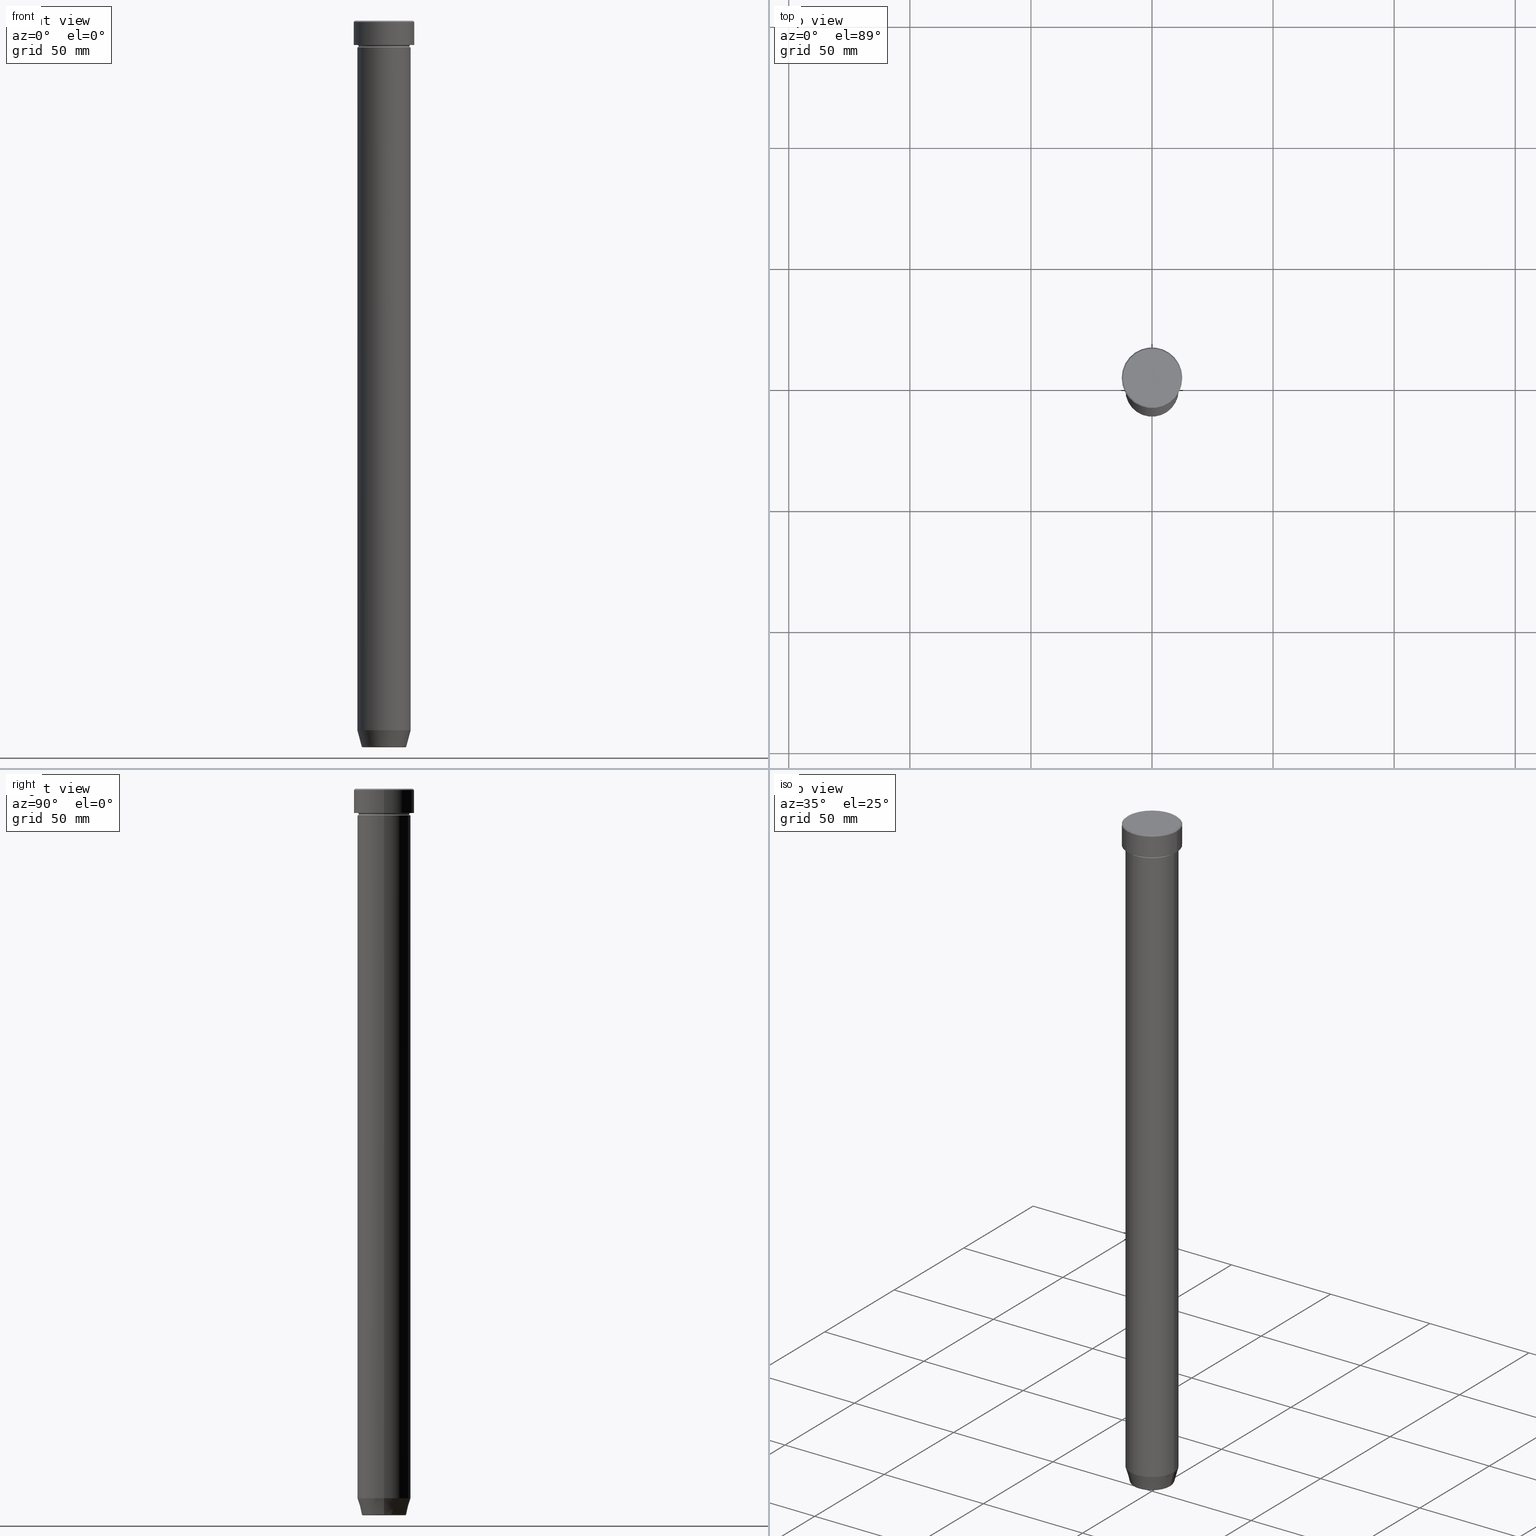
[diagram: canonical four-view strip — front | top / right | iso, engineering-drawing reading convention]
A machine part, canonical four-view strip (front | top / right | iso — engineering-drawing reading convention). The complete STEP part file that produces these views, byte-faithful:
ISO-10303-21;
HEADER;
FILE_DESCRIPTION (( 'STEP AP203' ),
    '1' );
FILE_NAME ('4455.STEP',
    '2024-01-02T19:21:21',
    ( '' ),
    ( '' ),
    'SwSTEP 2.0',
    'SolidWorks 2019',
    '' );
FILE_SCHEMA (( 'CONFIG_CONTROL_DESIGN' ));
ENDSEC;

DATA;
#1 = DIRECTION ( 'NONE',  ( 1.000000000000000000, 0.000000000000000000, 0.000000000000000000 ) ) ;
#2 = MECHANICAL_CONTEXT ( 'NONE', #99, 'mechanical' ) ;
#3 = DIRECTION ( 'NONE',  ( 1.000000000000000000, 0.000000000000000000, 0.000000000000000000 ) ) ;
#4 = ORIENTED_EDGE ( 'NONE', *, *, #366, .F. ) ;
#5 = DIRECTION ( 'NONE',  ( 1.000000000000000000, 0.000000000000000000, 0.000000000000000000 ) ) ;
#6 = FACE_OUTER_BOUND ( 'NONE', #389, .T. ) ;
#7 = AXIS2_PLACEMENT_3D ( 'NONE', #462, #44, #103 ) ;
#8 = AXIS2_PLACEMENT_3D ( 'NONE', #593, #599, #39 ) ;
#9 = PERSON_AND_ORGANIZATION_ROLE ( 'creator' ) ;
#10 = ORIENTED_EDGE ( 'NONE', *, *, #246, .F. ) ;
#11 = FACE_OUTER_BOUND ( 'NONE', #453, .T. ) ;
#12 = CARTESIAN_POINT ( 'NONE',  ( 8.740692158992649397, 0.000000000000000000, -300.0000000000000568 ) ) ;
#13 = ORIENTED_EDGE ( 'NONE', *, *, #347, .F. ) ;
#14 = CARTESIAN_POINT ( 'NONE',  ( -11.00000000000000000, 1.347111479062088405E-15, -11.00000000000000000 ) ) ;
#15 = EDGE_CURVE ( 'NONE', #28, #100, #488, .T. ) ;
#16 = DIRECTION ( 'NONE',  ( 1.000000000000000000, 0.000000000000000000, 0.000000000000000000 ) ) ;
#17 = EDGE_CURVE ( 'NONE', #273, #529, #159, .T. ) ;
#18 = DATE_AND_TIME ( #107, #428 ) ;
#19 = AXIS2_PLACEMENT_3D ( 'NONE', #68, #158, #329 ) ;
#20 = VECTOR ( 'NONE', #300, 1000.000000000000000 ) ;
#21 = DIRECTION ( 'NONE',  ( -0.000000000000000000, -0.000000000000000000, 1.000000000000000000 ) ) ;
#22 = PRODUCT_DEFINITION ( 'NEZN�M�', '', #288, #29 ) ;
#23 = APPROVAL_DATE_TIME ( #272, #583 ) ;
#24 = CIRCLE ( 'NONE', #84, 11.00000000000000000 ) ;
#25 = VECTOR ( 'NONE', #169, 999.9999999999998863 ) ;
#26 = DIRECTION ( 'NONE',  ( -0.000000000000000000, -0.000000000000000000, 1.000000000000000000 ) ) ;
#27 = ORIENTED_EDGE ( 'NONE', *, *, #319, .F. ) ;
#28 = VERTEX_POINT ( 'NONE', #586 ) ;
#29 = DESIGN_CONTEXT ( 'detailed design', #480, 'design' ) ;
#30 = ORIENTED_EDGE ( 'NONE', *, *, #54, .T. ) ;
#31 = LOCAL_TIME ( 20, 21, 21.00000000000000000, #360 ) ;
#32 = CYLINDRICAL_SURFACE ( 'NONE', #597, 12.50000000000000000 ) ;
#33 = EDGE_LOOP ( 'NONE', ( #403, #124 ) ) ;
#34 = CARTESIAN_POINT ( 'NONE',  ( 0.000000000000000000, 0.000000000000000000, 0.000000000000000000 ) ) ;
#35 = FACE_OUTER_BOUND ( 'NONE', #111, .T. ) ;
#36 = AXIS2_PLACEMENT_3D ( 'NONE', #463, #413, #452 ) ;
#37 = ADVANCED_FACE ( 'NONE', ( #35 ), #399, .T. ) ;
#38 = ORIENTED_EDGE ( 'NONE', *, *, #98, .F. ) ;
#39 = DIRECTION ( 'NONE',  ( 1.000000000000000000, 0.000000000000000000, 0.000000000000000000 ) ) ;
#40 = DIRECTION ( 'NONE',  ( -0.000000000000000000, -1.000000000000000000, -0.000000000000000000 ) ) ;
#41 = ORIENTED_EDGE ( 'NONE', *, *, #286, .T. ) ;
#42 = DIRECTION ( 'NONE',  ( 1.000000000000000000, 0.000000000000000000, 0.000000000000000000 ) ) ;
#43 = DIRECTION ( 'NONE',  ( 0.000000000000000000, -1.000000000000000000, 0.000000000000000000 ) ) ;
#44 = DIRECTION ( 'NONE',  ( -0.000000000000000000, -0.000000000000000000, 1.000000000000000000 ) ) ;
#45 = CARTESIAN_POINT ( 'NONE',  ( 0.000000000000000000, 0.000000000000000000, -27.00000000000000000 ) ) ;
#46 = DIRECTION ( 'NONE',  ( 1.000000000000000000, 0.000000000000000000, 0.000000000000000000 ) ) ;
#47 = AXIS2_PLACEMENT_3D ( 'NONE', #350, #134, #213 ) ;
#48 = PERSON_AND_ORGANIZATION ( #513, #315 ) ;
#49 = TOROIDAL_SURFACE ( 'NONE', #140, 11.00000000000000000, 0.5000000000000000000 ) ;
#50 = DIRECTION ( 'NONE',  ( 0.000000000000000000, 0.000000000000000000, -1.000000000000000000 ) ) ;
#51 = DIRECTION ( 'NONE',  ( 1.000000000000000000, 0.000000000000000000, 0.000000000000000000 ) ) ;
#52 = CYLINDRICAL_SURFACE ( 'NONE', #491, 11.00000000000000000 ) ;
#53 = DIRECTION ( 'NONE',  ( 1.000000000000000000, 0.000000000000000000, 0.000000000000000000 ) ) ;
#54 = EDGE_CURVE ( 'NONE', #208, #489, #365, .T. ) ;
#55 = ORIENTED_EDGE ( 'NONE', *, *, #155, .T. ) ;
#56 = DIRECTION ( 'NONE',  ( 1.000000000000000000, 0.000000000000000000, 0.000000000000000000 ) ) ;
#57 = ORIENTED_EDGE ( 'NONE', *, *, #390, .T. ) ;
#58 = CIRCLE ( 'NONE', #19, 12.50000000000000000 ) ;
#59 = CYLINDRICAL_SURFACE ( 'NONE', #7, 11.00000000000000000 ) ;
#60 = ORIENTED_EDGE ( 'NONE', *, *, #495, .T. ) ;
#61 = CARTESIAN_POINT ( 'NONE',  ( -10.49999999999999822, 1.316495309083404420E-15, -10.49999999999999822 ) ) ;
#62 = CARTESIAN_POINT ( 'NONE',  ( 0.000000000000000000, 0.000000000000000000, 0.000000000000000000 ) ) ;
#63 = FACE_OUTER_BOUND ( 'NONE', #211, .T. ) ;
#64 = DIRECTION ( 'NONE',  ( -0.000000000000000000, -0.000000000000000000, 1.000000000000000000 ) ) ;
#65 = APPROVAL_STATUS ( 'not_yet_approved' ) ;
#66 = ORIENTED_EDGE ( 'NONE', *, *, #585, .F. ) ;
#67 = FACE_OUTER_BOUND ( 'NONE', #199, .T. ) ;
#68 = CARTESIAN_POINT ( 'NONE',  ( 0.000000000000000000, 0.000000000000000000, -10.00000000000000000 ) ) ;
#69 = AXIS2_PLACEMENT_3D ( 'NONE', #45, #264, #410 ) ;
#70 = PRODUCT_RELATED_PRODUCT_CATEGORY ( 'detail', '', ( #445 ) ) ;
#71 =( NAMED_UNIT ( * ) PLANE_ANGLE_UNIT ( ) SI_UNIT ( $, .RADIAN. ) );
#72 = AXIS2_PLACEMENT_3D ( 'NONE', #552, #132, #308 ) ;
#73 = ORIENTED_EDGE ( 'NONE', *, *, #449, .T. ) ;
#74 = ADVANCED_FACE ( 'NONE', ( #278 ), #579, .T. ) ;
#75 = ADVANCED_FACE ( 'NONE', ( #423 ), #195, .T. ) ;
#76 = CARTESIAN_POINT ( 'NONE',  ( 0.000000000000000000, 0.000000000000000000, -10.00000000000000000 ) ) ;
#77 = PERSON_AND_ORGANIZATION ( #513, #315 ) ;
#78 = EDGE_LOOP ( 'NONE', ( #497, #189, #490, #224 ) ) ;
#79 = FACE_OUTER_BOUND ( 'NONE', #353, .T. ) ;
#80 = ORIENTED_EDGE ( 'NONE', *, *, #241, .T. ) ;
#81 = EDGE_CURVE ( 'NONE', #177, #375, #596, .T. ) ;
#82 = CARTESIAN_POINT ( 'NONE',  ( 11.00000000000000000, 1.347111479062088405E-15, -10.00000000000000000 ) ) ;
#83 = VERTEX_POINT ( 'NONE', #527 ) ;
#84 = AXIS2_PLACEMENT_3D ( 'NONE', #94, #136, #261 ) ;
#85 = AXIS2_PLACEMENT_3D ( 'NONE', #102, #371, #424 ) ;
#86 = ADVANCED_FACE ( 'NONE', ( #108 ), #450, .F. ) ;
#87 = CARTESIAN_POINT ( 'NONE',  ( 0.000000000000000000, 0.000000000000000000, -300.0000000000000568 ) ) ;
#88 = ORIENTED_EDGE ( 'NONE', *, *, #566, .F. ) ;
#89 = CARTESIAN_POINT ( 'NONE',  ( 0.000000000000000000, 12.50000000000000000, -10.00000000000000000 ) ) ;
#90 = CARTESIAN_POINT ( 'NONE',  ( 9.124355652982126585, 0.000000000000000000, -300.0000000000000568 ) ) ;
#91 = EDGE_CURVE ( 'NONE', #123, #345, #512, .T. ) ;
#92 = EDGE_CURVE ( 'NONE', #273, #240, #466, .T. ) ;
#93 = ORIENTED_EDGE ( 'NONE', *, *, #495, .F. ) ;
#94 = CARTESIAN_POINT ( 'NONE',  ( 0.000000000000000000, 0.000000000000000000, -293.0000000000000568 ) ) ;
#95 = CONICAL_SURFACE ( 'NONE', #248, 9.124355652982126585, 0.2617993877991509621 ) ;
#96 = DATE_AND_TIME ( #560, #138 ) ;
#97 = AXIS2_PLACEMENT_3D ( 'NONE', #470, #433, #205 ) ;
#98 = EDGE_CURVE ( 'NONE', #123, #171, #139, .T. ) ;
#99 = APPLICATION_CONTEXT ( 'configuration controlled 3d designs of mechanical parts and assemblies' ) ;
#100 = VERTEX_POINT ( 'NONE', #592 ) ;
#101 = APPROVAL_ROLE ( '' ) ;
#102 = CARTESIAN_POINT ( 'NONE',  ( 0.000000000000000000, 0.000000000000000000, -27.00000000000000000 ) ) ;
#103 = DIRECTION ( 'NONE',  ( 1.000000000000000000, 0.000000000000000000, 0.000000000000000000 ) ) ;
#104 = SHAPE_DEFINITION_REPRESENTATION ( #377, #149 ) ;
#105 = CC_DESIGN_SECURITY_CLASSIFICATION ( #234, ( #288 ) ) ;
#106 = DATE_AND_TIME ( #477, #563 ) ;
#107 = CALENDAR_DATE ( 2024, 2, 1 ) ;
#108 = FACE_OUTER_BOUND ( 'NONE', #478, .T. ) ;
#109 = AXIS2_PLACEMENT_3D ( 'NONE', #441, #398, #222 ) ;
#110 = MANIFOLD_SOLID_BREP ( 'Zkosen�1', #257 ) ;
#111 = EDGE_LOOP ( 'NONE', ( #570, #57, #55, #130 ) ) ;
#112 = MANIFOLD_SOLID_BREP ( 'Zaoblit4', #380 ) ;
#113 = DIRECTION ( 'NONE',  ( 1.000000000000000000, 0.000000000000000000, 0.000000000000000000 ) ) ;
#114 = DIRECTION ( 'NONE',  ( 0.000000000000000000, 0.000000000000000000, -1.000000000000000000 ) ) ;
#115 = APPROVAL_PERSON_ORGANIZATION ( #425, #583, #183 ) ;
#116 = DIRECTION ( 'NONE',  ( 1.000000000000000000, 0.000000000000000000, 0.000000000000000000 ) ) ;
#117 = AXIS2_PLACEMENT_3D ( 'NONE', #76, #164, #342 ) ;
#118 = CIRCLE ( 'NONE', #530, 8.740692158992649397 ) ;
#119 = EDGE_CURVE ( 'NONE', #405, #171, #587, .T. ) ;
#120 = VERTEX_POINT ( 'NONE', #311 ) ;
#121 = ADVANCED_FACE ( 'NONE', ( #588 ), #207, .T. ) ;
#122 = AXIS2_PLACEMENT_3D ( 'NONE', #287, #384, #374 ) ;
#123 = VERTEX_POINT ( 'NONE', #247 ) ;
#124 = ORIENTED_EDGE ( 'NONE', *, *, #482, .F. ) ;
#125 = EDGE_LOOP ( 'NONE', ( #232, #249, #448, #468 ) ) ;
#126 = CARTESIAN_POINT ( 'NONE',  ( -12.50000000000000000, 1.530808498934191521E-15, -0.4999999999999988343 ) ) ;
#127 = EDGE_CURVE ( 'NONE', #100, #28, #381, .T. ) ;
#128 = VERTEX_POINT ( 'NONE', #359 ) ;
#129 = CARTESIAN_POINT ( 'NONE',  ( 0.000000000000000000, 0.000000000000000000, -0.4999999999999988343 ) ) ;
#130 = ORIENTED_EDGE ( 'NONE', *, *, #337, .F. ) ;
#131 = AXIS2_PLACEMENT_3D ( 'NONE', #219, #437, #541 ) ;
#132 = DIRECTION ( 'NONE',  ( 0.000000000000000000, 0.000000000000000000, -1.000000000000000000 ) ) ;
#133 = VERTEX_POINT ( 'NONE', #173 ) ;
#134 = DIRECTION ( 'NONE',  ( 1.224646799147353207E-16, 1.000000000000000000, 0.000000000000000000 ) ) ;
#135 = COORDINATED_UNIVERSAL_TIME_OFFSET ( 1, 0, .AHEAD. ) ;
#136 = DIRECTION ( 'NONE',  ( -0.000000000000000000, -0.000000000000000000, 1.000000000000000000 ) ) ;
#137 = EDGE_CURVE ( 'NONE', #345, #120, #192, .T. ) ;
#138 = LOCAL_TIME ( 20, 21, 21.00000000000000000, #135 ) ;
#139 = CIRCLE ( 'NONE', #131, 9.223655072137175281 ) ;
#140 = AXIS2_PLACEMENT_3D ( 'NONE', #306, #508, #53 ) ;
#141 = CARTESIAN_POINT ( 'NONE',  ( 0.000000000000000000, 0.000000000000000000, -10.49999999999999822 ) ) ;
#142 = CARTESIAN_POINT ( 'NONE',  ( 11.00000000000000000, 0.000000000000000000, -293.0000000000000568 ) ) ;
#143 = VERTEX_POINT ( 'NONE', #126 ) ;
#144 = EDGE_CURVE ( 'NONE', #83, #421, #485, .T. ) ;
#145 = DIRECTION ( 'NONE',  ( -0.000000000000000000, -0.000000000000000000, 1.000000000000000000 ) ) ;
#146 = CARTESIAN_POINT ( 'NONE',  ( 0.000000000000000000, 0.000000000000000000, -300.0000000000000568 ) ) ;
#147 = VERTEX_POINT ( 'NONE', #584 ) ;
#148 = AXIS2_PLACEMENT_3D ( 'NONE', #141, #321, #516 ) ;
#149 = ADVANCED_BREP_SHAPE_REPRESENTATION ( '4455', ( #110, #112, #243 ), #435 ) ;
#150 = CONICAL_SURFACE ( 'NONE', #573, 12.00000000000000355, 0.7853981633974465026 ) ;
#151 = AXIS2_PLACEMENT_3D ( 'NONE', #461, #43, #408 ) ;
#152 = DIRECTION ( 'NONE',  ( 0.000000000000000000, 0.000000000000000000, -1.000000000000000000 ) ) ;
#153 = DIRECTION ( 'NONE',  ( -1.000000000000000000, 0.000000000000000000, -0.000000000000000000 ) ) ;
#154 = UNCERTAINTY_MEASURE_WITH_UNIT (LENGTH_MEASURE( 1.000000000000000082E-05 ), #312, 'distance_accuracy_value', 'NONE');
#155 = EDGE_CURVE ( 'NONE', #143, #147, #564, .T. ) ;
#156 = DIRECTION ( 'NONE',  ( -0.000000000000000000, -0.000000000000000000, 1.000000000000000000 ) ) ;
#157 = ADVANCED_FACE ( 'NONE', ( #176 ), #290, .F. ) ;
#158 = DIRECTION ( 'NONE',  ( -0.000000000000000000, -0.000000000000000000, 1.000000000000000000 ) ) ;
#159 = CIRCLE ( 'NONE', #339, 10.49999999999999822 ) ;
#160 = AXIS2_PLACEMENT_3D ( 'NONE', #89, #361, #295 ) ;
#161 = ORIENTED_EDGE ( 'NONE', *, *, #168, .T. ) ;
#162 = DIRECTION ( 'NONE',  ( 1.000000000000000000, 0.000000000000000000, 0.000000000000000000 ) ) ;
#163 = AXIS2_PLACEMENT_3D ( 'NONE', #416, #228, #5 ) ;
#164 = DIRECTION ( 'NONE',  ( -0.000000000000000000, -0.000000000000000000, 1.000000000000000000 ) ) ;
#165 = CIRCLE ( 'NONE', #301, 11.00000000000000000 ) ;
#166 = TOROIDAL_SURFACE ( 'NONE', #474, 8.740692158992649397, 0.5000000000000000000 ) ;
#167 = DIRECTION ( 'NONE',  ( 1.000000000000000000, 0.000000000000000000, 0.000000000000000000 ) ) ;
#168 = EDGE_CURVE ( 'NONE', #133, #240, #368, .T. ) ;
#169 = DIRECTION ( 'NONE',  ( -0.7071067811865462405, 0.000000000000000000, -0.7071067811865489050 ) ) ;
#170 = DIRECTION ( 'NONE',  ( 1.000000000000000000, 0.000000000000000000, 0.000000000000000000 ) ) ;
#171 = VERTEX_POINT ( 'NONE', #496 ) ;
#172 = ORIENTED_EDGE ( 'NONE', *, *, #394, .F. ) ;
#173 = CARTESIAN_POINT ( 'NONE',  ( -11.00000000000000000, 0.000000000000000000, -10.00000000000000000 ) ) ;
#174 = ORIENTED_EDGE ( 'NONE', *, *, #119, .T. ) ;
#175 = ORIENTED_EDGE ( 'NONE', *, *, #347, .T. ) ;
#176 = FACE_OUTER_BOUND ( 'NONE', #260, .T. ) ;
#177 = VERTEX_POINT ( 'NONE', #210 ) ;
#178 = ADVANCED_FACE ( 'NONE', ( #79 ), #32, .T. ) ;
#179 = VECTOR ( 'NONE', #267, 1000.000000000000000 ) ;
#180 = TOROIDAL_SURFACE ( 'NONE', #148, 11.00000000000000000, 0.5000000000000000000 ) ;
#181 = PERSON_AND_ORGANIZATION ( #513, #315 ) ;
#182 = DIRECTION ( 'NONE',  ( 0.000000000000000000, -1.000000000000000000, 0.000000000000000000 ) ) ;
#183 = APPROVAL_ROLE ( '' ) ;
#184 = EDGE_CURVE ( 'NONE', #421, #83, #551, .T. ) ;
#185 = FACE_OUTER_BOUND ( 'NONE', #78, .T. ) ;
#186 = EDGE_CURVE ( 'NONE', #83, #147, #188, .T. ) ;
#187 = CARTESIAN_POINT ( 'NONE',  ( 0.000000000000000000, 3.061616997868383753E-14, -300.0000000000000568 ) ) ;
#188 = LINE ( 'NONE', #316, #259 ) ;
#189 = ORIENTED_EDGE ( 'NONE', *, *, #482, .T. ) ;
#190 = CARTESIAN_POINT ( 'NONE',  ( 0.000000000000000000, 0.000000000000000000, -27.00000000000000000 ) ) ;
#191 = CARTESIAN_POINT ( 'NONE',  ( -11.00000000000000000, 1.347111479062088405E-15, 0.000000000000000000 ) ) ;
#192 = CIRCLE ( 'NONE', #282, 11.00000000000000000 ) ;
#193 = CIRCLE ( 'NONE', #492, 0.5000000000000004441 ) ;
#194 = PERSON_AND_ORGANIZATION ( #513, #315 ) ;
#195 = CYLINDRICAL_SURFACE ( 'NONE', #332, 11.00000000000000000 ) ;
#196 = PLANE ( 'NONE',  #422 ) ;
#197 = CARTESIAN_POINT ( 'NONE',  ( 0.000000000000000000, 0.000000000000000000, 0.000000000000000000 ) ) ;
#198 = CARTESIAN_POINT ( 'NONE',  ( 0.000000000000000000, 0.000000000000000000, 0.000000000000000000 ) ) ;
#199 = EDGE_LOOP ( 'NONE', ( #548, #268, #460, #88 ) ) ;
#200 = FACE_OUTER_BOUND ( 'NONE', #343, .T. ) ;
#201 = CARTESIAN_POINT ( 'NONE',  ( 0.000000000000000000, 0.000000000000000000, -300.0000000000000568 ) ) ;
#202 = ADVANCED_FACE ( 'NONE', ( #6 ), #419, .F. ) ;
#203 = AXIS2_PLACEMENT_3D ( 'NONE', #209, #217, #162 ) ;
#204 = AXIS2_PLACEMENT_3D ( 'NONE', #386, #475, #327 ) ;
#205 = DIRECTION ( 'NONE',  ( 1.000000000000000000, 0.000000000000000000, 0.000000000000000000 ) ) ;
#206 = CARTESIAN_POINT ( 'NONE',  ( 12.50000000000000000, 0.000000000000000000, 0.000000000000000000 ) ) ;
#207 = TOROIDAL_SURFACE ( 'NONE', #420, 8.740692158992649397, 0.5000000000000000000 ) ;
#208 = VERTEX_POINT ( 'NONE', #269 ) ;
#209 = CARTESIAN_POINT ( 'NONE',  ( 0.000000000000000000, 0.000000000000000000, -27.00000000000000000 ) ) ;
#210 = CARTESIAN_POINT ( 'NONE',  ( 11.00000000000000000, 0.000000000000000000, -27.00000000000000000 ) ) ;
#211 = EDGE_LOOP ( 'NONE', ( #256, #440, #498, #212 ) ) ;
#212 = ORIENTED_EDGE ( 'NONE', *, *, #91, .F. ) ;
#213 = DIRECTION ( 'NONE',  ( -1.000000000000000000, 1.224646799147353454E-16, 0.000000000000000000 ) ) ;
#214 = CARTESIAN_POINT ( 'NONE',  ( 0.000000000000000000, 0.000000000000000000, 0.000000000000000000 ) ) ;
#215 = CIRCLE ( 'NONE', #351, 11.00000000000000000 ) ;
#216 = ORIENTED_EDGE ( 'NONE', *, *, #390, .F. ) ;
#217 = DIRECTION ( 'NONE',  ( -0.000000000000000000, -0.000000000000000000, 1.000000000000000000 ) ) ;
#218 = DATE_AND_TIME ( #404, #571 ) ;
#219 = CARTESIAN_POINT ( 'NONE',  ( 0.000000000000000000, 0.000000000000000000, -299.6294095225512706 ) ) ;
#220 = FACE_OUTER_BOUND ( 'NONE', #125, .T. ) ;
#221 = ORIENTED_EDGE ( 'NONE', *, *, #91, .T. ) ;
#222 = DIRECTION ( 'NONE',  ( 1.000000000000000000, 0.000000000000000000, 0.000000000000000000 ) ) ;
#223 = EDGE_LOOP ( 'NONE', ( #66, #392, #493, #525 ) ) ;
#224 = ORIENTED_EDGE ( 'NONE', *, *, #241, .F. ) ;
#225 = AXIS2_PLACEMENT_3D ( 'NONE', #279, #522, #307 ) ;
#226 = AXIS2_PLACEMENT_3D ( 'NONE', #227, #40, #558 ) ;
#227 = CARTESIAN_POINT ( 'NONE',  ( -11.00000000000000000, 0.000000000000000000, -10.50000000000000000 ) ) ;
#228 = DIRECTION ( 'NONE',  ( -0.000000000000000000, -0.000000000000000000, 1.000000000000000000 ) ) ;
#229 = CIRCLE ( 'NONE', #85, 11.00000000000000000 ) ;
#230 = FACE_OUTER_BOUND ( 'NONE', #455, .T. ) ;
#231 = DIRECTION ( 'NONE',  ( -0.2588190451025222383, 3.169619151431782814E-17, 0.9659258262890678681 ) ) ;
#232 = ORIENTED_EDGE ( 'NONE', *, *, #186, .F. ) ;
#233 = EDGE_CURVE ( 'NONE', #529, #133, #325, .T. ) ;
#234 = SECURITY_CLASSIFICATION ( '', '', #362 ) ;
#235 = DIRECTION ( 'NONE',  ( 0.000000000000000000, 0.000000000000000000, -1.000000000000000000 ) ) ;
#236 = AXIS2_PLACEMENT_3D ( 'NONE', #201, #235, #379 ) ;
#237 = CARTESIAN_POINT ( 'NONE',  ( 0.000000000000000000, 0.000000000000000000, -10.50000000000000000 ) ) ;
#238 = DIRECTION ( 'NONE',  ( 1.000000000000000000, 0.000000000000000000, 0.000000000000000000 ) ) ;
#239 = CARTESIAN_POINT ( 'NONE',  ( 0.000000000000000000, 0.000000000000000000, -11.00000000000000000 ) ) ;
#240 = VERTEX_POINT ( 'NONE', #82 ) ;
#241 = EDGE_CURVE ( 'NONE', #489, #375, #165, .T. ) ;
#242 = CARTESIAN_POINT ( 'NONE',  ( -12.50000000000000000, 1.530808498934191521E-15, 0.000000000000000000 ) ) ;
#243 = AXIS2_PLACEMENT_3D ( 'NONE', #598, #456, #42 ) ;
#244 = AXIS2_PLACEMENT_3D ( 'NONE', #237, #356, #556 ) ;
#245 = DIRECTION ( 'NONE',  ( 1.000000000000000000, 0.000000000000000000, 0.000000000000000000 ) ) ;
#246 = EDGE_CURVE ( 'NONE', #120, #345, #24, .T. ) ;
#247 = CARTESIAN_POINT ( 'NONE',  ( 9.223655072137175281, 0.000000000000000000, -299.6294095225512706 ) ) ;
#248 = AXIS2_PLACEMENT_3D ( 'NONE', #146, #535, #16 ) ;
#249 = ORIENTED_EDGE ( 'NONE', *, *, #184, .F. ) ;
#250 = ORIENTED_EDGE ( 'NONE', *, *, #127, .F. ) ;
#251 =( NAMED_UNIT ( * ) SI_UNIT ( $, .STERADIAN. ) SOLID_ANGLE_UNIT ( ) );
#252 = CC_DESIGN_PERSON_AND_ORGANIZATION_ASSIGNMENT ( #417, #9, ( #22 ) ) ;
#253 = APPROVAL_STATUS ( 'not_yet_approved' ) ;
#254 = ORIENTED_EDGE ( 'NONE', *, *, #449, .F. ) ;
#255 = ADVANCED_FACE ( 'NONE', ( #554, #459 ), #511, .T. ) ;
#256 = ORIENTED_EDGE ( 'NONE', *, *, #98, .T. ) ;
#257 = CLOSED_SHELL ( 'NONE', ( #376, #157, #575, #464, #37, #520, #486, #178, #255, #285, #414, #86, #289 ) ) ;
#258 = PLANE ( 'NONE',  #542 ) ;
#259 = VECTOR ( 'NONE', #521, 999.9999999999998863 ) ;
#260 = EDGE_LOOP ( 'NONE', ( #406, #500, #427, #373 ) ) ;
#261 = DIRECTION ( 'NONE',  ( 1.000000000000000000, 0.000000000000000000, 0.000000000000000000 ) ) ;
#262 = EDGE_LOOP ( 'NONE', ( #418, #30, #27, #591 ) ) ;
#263 = DIRECTION ( 'NONE',  ( -0.000000000000000000, -0.000000000000000000, 1.000000000000000000 ) ) ;
#264 = DIRECTION ( 'NONE',  ( -0.000000000000000000, -0.000000000000000000, 1.000000000000000000 ) ) ;
#265 = ORIENTED_EDGE ( 'NONE', *, *, #434, .T. ) ;
#266 = CARTESIAN_POINT ( 'NONE',  ( -8.740692158992649397, 1.099999016768738470E-15, -300.0000000000000568 ) ) ;
#267 = DIRECTION ( 'NONE',  ( 0.2588190451025222383, 0.000000000000000000, 0.9659258262890678681 ) ) ;
#268 = ORIENTED_EDGE ( 'NONE', *, *, #186, .T. ) ;
#269 = CARTESIAN_POINT ( 'NONE',  ( -11.00000000000000000, 1.347111479062088405E-15, -27.00000000000000000 ) ) ;
#270 = APPROVAL_DATE_TIME ( #96, #274 ) ;
#271 = LINE ( 'NONE', #451, #341 ) ;
#272 = DATE_AND_TIME ( #317, #31 ) ;
#273 = VERTEX_POINT ( 'NONE', #412 ) ;
#274 = APPROVAL ( #357, 'NEUR�EN�' ) ;
#275 = COORDINATED_UNIVERSAL_TIME_OFFSET ( 1, 0, .AHEAD. ) ;
#276 = ORIENTED_EDGE ( 'NONE', *, *, #246, .T. ) ;
#277 = DIRECTION ( 'NONE',  ( -0.000000000000000000, -0.000000000000000000, 1.000000000000000000 ) ) ;
#278 = FACE_OUTER_BOUND ( 'NONE', #538, .T. ) ;
#279 = CARTESIAN_POINT ( 'NONE',  ( -11.00000000000000000, 1.347111479062088405E-15, -10.49999999999999822 ) ) ;
#280 = CARTESIAN_POINT ( 'NONE',  ( 11.00000000000000000, 0.000000000000000000, -11.00000000000000000 ) ) ;
#281 = ORIENTED_EDGE ( 'NONE', *, *, #439, .T. ) ;
#282 = AXIS2_PLACEMENT_3D ( 'NONE', #458, #294, #543 ) ;
#283 = EDGE_CURVE ( 'NONE', #171, #120, #446, .T. ) ;
#284 = ORIENTED_EDGE ( 'NONE', *, *, #283, .F. ) ;
#285 = ADVANCED_FACE ( 'NONE', ( #185 ), #52, .T. ) ;
#286 = EDGE_CURVE ( 'NONE', #147, #143, #519, .T. ) ;
#287 = CARTESIAN_POINT ( 'NONE',  ( 0.000000000000000000, 0.000000000000000000, -27.00000000000000000 ) ) ;
#288 = PRODUCT_DEFINITION_FORMATION_WITH_SPECIFIED_SOURCE ( 'LIBOVOLN�', '', #445, .NOT_KNOWN. ) ;
#289 = ADVANCED_FACE ( 'NONE', ( #220 ), #150, .T. ) ;
#290 = TOROIDAL_SURFACE ( 'NONE', #72, 11.00000000000000000, 0.5000000000000000000 ) ;
#291 = ORIENTED_EDGE ( 'NONE', *, *, #434, .F. ) ;
#292 = CIRCLE ( 'NONE', #122, 11.00000000000000000 ) ;
#293 = EDGE_CURVE ( 'NONE', #177, #208, #292, .T. ) ;
#294 = DIRECTION ( 'NONE',  ( -0.000000000000000000, -0.000000000000000000, 1.000000000000000000 ) ) ;
#295 = DIRECTION ( 'NONE',  ( -1.000000000000000000, 0.000000000000000000, -0.000000000000000000 ) ) ;
#296 = VERTEX_POINT ( 'NONE', #12 ) ;
#297 = COORDINATED_UNIVERSAL_TIME_OFFSET ( 1, 0, .AHEAD. ) ;
#298 = DIRECTION ( 'NONE',  ( 0.000000000000000000, 0.000000000000000000, -1.000000000000000000 ) ) ;
#299 = ORIENTED_EDGE ( 'NONE', *, *, #92, .F. ) ;
#300 = DIRECTION ( 'NONE',  ( -0.000000000000000000, -0.000000000000000000, 1.000000000000000000 ) ) ;
#301 = AXIS2_PLACEMENT_3D ( 'NONE', #354, #544, #1 ) ;
#302 = EDGE_LOOP ( 'NONE', ( #172, #276, #73, #505 ) ) ;
#303 = DIRECTION ( 'NONE',  ( -0.000000000000000000, -0.000000000000000000, 1.000000000000000000 ) ) ;
#304 = ORIENTED_EDGE ( 'NONE', *, *, #184, .T. ) ;
#305 = EDGE_CURVE ( 'NONE', #240, #133, #537, .T. ) ;
#306 = CARTESIAN_POINT ( 'NONE',  ( 0.000000000000000000, 0.000000000000000000, -10.49999999999999822 ) ) ;
#307 = DIRECTION ( 'NONE',  ( -1.000000000000000000, 1.224646799147353454E-16, 0.000000000000000000 ) ) ;
#308 = DIRECTION ( 'NONE',  ( -1.000000000000000000, 0.000000000000000000, 0.000000000000000000 ) ) ;
#309 = ORIENTED_EDGE ( 'NONE', *, *, #17, .T. ) ;
#310 = DIRECTION ( 'NONE',  ( -0.000000000000000000, -0.000000000000000000, 1.000000000000000000 ) ) ;
#311 = CARTESIAN_POINT ( 'NONE',  ( -11.00000000000000000, 1.347111479062088405E-15, -293.0000000000000568 ) ) ;
#312 =( LENGTH_UNIT ( ) NAMED_UNIT ( * ) SI_UNIT ( .MILLI., .METRE. ) );
#313 = CARTESIAN_POINT ( 'NONE',  ( -9.124355652982126585, 1.117411294470662018E-15, -300.0000000000000568 ) ) ;
#314 = DATE_TIME_ROLE ( 'classification_date' ) ;
#315 = ORGANIZATION ( 'NEUR�EN�', 'NEUR�EN�', '' ) ;
#316 = CARTESIAN_POINT ( 'NONE',  ( 12.00000000000000355, 1.469576158976824342E-15, 0.000000000000000000 ) ) ;
#317 = CALENDAR_DATE ( 2024, 2, 1 ) ;
#318 = AXIS2_PLACEMENT_3D ( 'NONE', #476, #372, #567 ) ;
#319 = EDGE_CURVE ( 'NONE', #375, #489, #215, .T. ) ;
#320 = CYLINDRICAL_SURFACE ( 'NONE', #97, 11.00000000000000000 ) ;
#321 = DIRECTION ( 'NONE',  ( -0.000000000000000000, -0.000000000000000000, 1.000000000000000000 ) ) ;
#322 = CARTESIAN_POINT ( 'NONE',  ( 11.00000000000000000, 0.000000000000000000, 0.000000000000000000 ) ) ;
#323 = DIRECTION ( 'NONE',  ( -0.000000000000000000, -0.000000000000000000, 1.000000000000000000 ) ) ;
#324 = ORIENTED_EDGE ( 'NONE', *, *, #137, .T. ) ;
#325 = CIRCLE ( 'NONE', #226, 0.5000000000000004441 ) ;
#326 = CC_DESIGN_PERSON_AND_ORGANIZATION_ASSIGNMENT ( #48, #364, ( #445 ) ) ;
#327 = DIRECTION ( 'NONE',  ( 1.000000000000000000, 0.000000000000000000, 0.000000000000000000 ) ) ;
#328 = DIRECTION ( 'NONE',  ( -1.000000000000000000, 0.000000000000000000, 0.000000000000000000 ) ) ;
#329 = DIRECTION ( 'NONE',  ( 1.000000000000000000, 0.000000000000000000, 0.000000000000000000 ) ) ;
#330 = EDGE_CURVE ( 'NONE', #517, #128, #58, .T. ) ;
#331 = DIRECTION ( 'NONE',  ( -1.000000000000000000, 0.000000000000000000, -0.000000000000000000 ) ) ;
#332 = AXIS2_PLACEMENT_3D ( 'NONE', #62, #145, #46 ) ;
#333 = ADVANCED_FACE ( 'NONE', ( #63 ), #95, .T. ) ;
#334 = EDGE_LOOP ( 'NONE', ( #161, #501 ) ) ;
#335 = LINE ( 'NONE', #396, #20 ) ;
#336 = ORIENTED_EDGE ( 'NONE', *, *, #337, .T. ) ;
#337 = EDGE_CURVE ( 'NONE', #517, #147, #426, .T. ) ;
#338 = CARTESIAN_POINT ( 'NONE',  ( 0.000000000000000000, 0.000000000000000000, -10.49999999999999822 ) ) ;
#339 = AXIS2_PLACEMENT_3D ( 'NONE', #338, #443, #393 ) ;
#340 = CIRCLE ( 'NONE', #236, 8.740692158992649397 ) ;
#341 = VECTOR ( 'NONE', #263, 1000.000000000000000 ) ;
#342 = DIRECTION ( 'NONE',  ( -1.000000000000000000, 0.000000000000000000, 0.000000000000000000 ) ) ;
#343 = EDGE_LOOP ( 'NONE', ( #568, #174, #38, #291 ) ) ;
#344 = PERSON_AND_ORGANIZATION_ROLE ( 'creator' ) ;
#345 = VERTEX_POINT ( 'NONE', #142 ) ;
#346 = APPROVAL_PERSON_ORGANIZATION ( #77, #400, #546 ) ;
#347 = EDGE_CURVE ( 'NONE', #296, #405, #340, .T. ) ;
#348 = DIRECTION ( 'NONE',  ( 0.000000000000000000, 0.000000000000000000, -1.000000000000000000 ) ) ;
#349 = EDGE_LOOP ( 'NONE', ( #473, #415 ) ) ;
#350 = CARTESIAN_POINT ( 'NONE',  ( -8.740692158992649397, 1.070426067484271730E-15, -299.5000000000000568 ) ) ;
#351 = AXIS2_PLACEMENT_3D ( 'NONE', #239, #483, #113 ) ;
#352 = APPROVAL_DATE_TIME ( #218, #400 ) ;
#353 = EDGE_LOOP ( 'NONE', ( #216, #401, #336, #41 ) ) ;
#354 = CARTESIAN_POINT ( 'NONE',  ( 0.000000000000000000, 0.000000000000000000, -11.00000000000000000 ) ) ;
#355 = PERSON_AND_ORGANIZATION ( #513, #315 ) ;
#356 = DIRECTION ( 'NONE',  ( 0.000000000000000000, 0.000000000000000000, -1.000000000000000000 ) ) ;
#357 = APPROVAL_STATUS ( 'not_yet_approved' ) ;
#358 = DIRECTION ( 'NONE',  ( 0.000000000000000000, 0.000000000000000000, -1.000000000000000000 ) ) ;
#359 = CARTESIAN_POINT ( 'NONE',  ( -12.50000000000000000, 1.530808498934191521E-15, -10.00000000000000000 ) ) ;
#360 = COORDINATED_UNIVERSAL_TIME_OFFSET ( 1, 0, .AHEAD. ) ;
#361 = DIRECTION ( 'NONE',  ( 0.000000000000000000, 0.000000000000000000, -1.000000000000000000 ) ) ;
#362 = SECURITY_CLASSIFICATION_LEVEL ( 'unclassified' ) ;
#363 = CC_DESIGN_PERSON_AND_ORGANIZATION_ASSIGNMENT ( #194, #526, ( #234 ) ) ;
#364 = PERSON_AND_ORGANIZATION_ROLE ( 'design_owner' ) ;
#365 = LINE ( 'NONE', #191, #429 ) ;
#366 = EDGE_CURVE ( 'NONE', #529, #273, #431, .T. ) ;
#367 = DIRECTION ( 'NONE',  ( 0.000000000000000000, 0.000000000000000000, -1.000000000000000000 ) ) ;
#368 = CIRCLE ( 'NONE', #117, 11.00000000000000000 ) ;
#369 = DIRECTION ( 'NONE',  ( -0.000000000000000000, -0.000000000000000000, 1.000000000000000000 ) ) ;
#370 = AXIS2_PLACEMENT_3D ( 'NONE', #197, #152, #328 ) ;
#371 = DIRECTION ( 'NONE',  ( -0.000000000000000000, -0.000000000000000000, 1.000000000000000000 ) ) ;
#372 = DIRECTION ( 'NONE',  ( -0.000000000000000000, -0.000000000000000000, 1.000000000000000000 ) ) ;
#373 = ORIENTED_EDGE ( 'NONE', *, *, #233, .F. ) ;
#374 = DIRECTION ( 'NONE',  ( 1.000000000000000000, 0.000000000000000000, 0.000000000000000000 ) ) ;
#375 = VERTEX_POINT ( 'NONE', #280 ) ;
#376 = ADVANCED_FACE ( 'NONE', ( #67 ), #382, .T. ) ;
#377 = PRODUCT_DEFINITION_SHAPE ( 'NONE', 'NONE',  #22 ) ;
#378 = CARTESIAN_POINT ( 'NONE',  ( 0.000000000000000000, 0.000000000000000000, -299.6294095225512706 ) ) ;
#379 = DIRECTION ( 'NONE',  ( 1.000000000000000000, 0.000000000000000000, 0.000000000000000000 ) ) ;
#380 = CLOSED_SHELL ( 'NONE', ( #557, #333, #75, #202, #594, #74, #447, #121 ) ) ;
#381 = CIRCLE ( 'NONE', #69, 11.00000000000000000 ) ;
#382 = CONICAL_SURFACE ( 'NONE', #370, 12.00000000000000355, 0.7853981633974465026 ) ;
#383 = FACE_OUTER_BOUND ( 'NONE', #33, .T. ) ;
#384 = DIRECTION ( 'NONE',  ( -0.000000000000000000, -0.000000000000000000, 1.000000000000000000 ) ) ;
#385 = CARTESIAN_POINT ( 'NONE',  ( 0.000000000000000000, 0.000000000000000000, -299.5000000000000568 ) ) ;
#386 = CARTESIAN_POINT ( 'NONE',  ( 0.000000000000000000, 0.000000000000000000, -10.00000000000000000 ) ) ;
#387 = AXIS2_PLACEMENT_3D ( 'NONE', #479, #572, #116 ) ;
#388 = APPLICATION_PROTOCOL_DEFINITION ( 'international standard', 'config_control_design', 1994, #99 ) ;
#389 = EDGE_LOOP ( 'NONE', ( #442, #553 ) ) ;
#390 = EDGE_CURVE ( 'NONE', #128, #143, #532, .T. ) ;
#391 = APPROVAL_PERSON_ORGANIZATION ( #181, #274, #101 ) ;
#392 = ORIENTED_EDGE ( 'NONE', *, *, #17, .F. ) ;
#393 = DIRECTION ( 'NONE',  ( 1.000000000000000000, 0.000000000000000000, 0.000000000000000000 ) ) ;
#394 = EDGE_CURVE ( 'NONE', #120, #28, #335, .T. ) ;
#395 = AXIS2_PLACEMENT_3D ( 'NONE', #469, #369, #56 ) ;
#396 = CARTESIAN_POINT ( 'NONE',  ( -11.00000000000000000, 1.347111479062088405E-15, 0.000000000000000000 ) ) ;
#397 = VECTOR ( 'NONE', #156, 1000.000000000000000 ) ;
#398 = DIRECTION ( 'NONE',  ( 0.000000000000000000, 0.000000000000000000, -1.000000000000000000 ) ) ;
#399 = CYLINDRICAL_SURFACE ( 'NONE', #163, 12.50000000000000000 ) ;
#400 = APPROVAL ( #253, 'NEUR�EN�' ) ;
#401 = ORIENTED_EDGE ( 'NONE', *, *, #514, .T. ) ;
#402 = CARTESIAN_POINT ( 'NONE',  ( 0.000000000000000000, 0.000000000000000000, 0.000000000000000000 ) ) ;
#403 = ORIENTED_EDGE ( 'NONE', *, *, #293, .F. ) ;
#404 = CALENDAR_DATE ( 2024, 2, 1 ) ;
#405 = VERTEX_POINT ( 'NONE', #266 ) ;
#406 = ORIENTED_EDGE ( 'NONE', *, *, #366, .T. ) ;
#407 = APPLICATION_PROTOCOL_DEFINITION ( 'international standard', 'config_control_design', 1994, #480 ) ;
#408 = DIRECTION ( 'NONE',  ( 0.000000000000000000, 0.000000000000000000, -1.000000000000000000 ) ) ;
#409 = VECTOR ( 'NONE', #231, 1000.000000000000000 ) ;
#410 = DIRECTION ( 'NONE',  ( 1.000000000000000000, 0.000000000000000000, 0.000000000000000000 ) ) ;
#411 = CC_DESIGN_DATE_AND_TIME_ASSIGNMENT ( #18, #314, ( #234 ) ) ;
#412 = CARTESIAN_POINT ( 'NONE',  ( 10.49999999999999822, 0.000000000000000000, -10.49999999999999822 ) ) ;
#413 = DIRECTION ( 'NONE',  ( -1.224646799147353207E-16, 1.000000000000000000, 0.000000000000000000 ) ) ;
#414 = ADVANCED_FACE ( 'NONE', ( #518 ), #49, .F. ) ;
#415 = ORIENTED_EDGE ( 'NONE', *, *, #514, .F. ) ;
#416 = CARTESIAN_POINT ( 'NONE',  ( 0.000000000000000000, 0.000000000000000000, 0.000000000000000000 ) ) ;
#417 = PERSON_AND_ORGANIZATION ( #513, #315 ) ;
#418 = ORIENTED_EDGE ( 'NONE', *, *, #293, .T. ) ;
#419 = PLANE ( 'NONE',  #438 ) ;
#420 = AXIS2_PLACEMENT_3D ( 'NONE', #484, #21, #436 ) ;
#421 = VERTEX_POINT ( 'NONE', #465 ) ;
#422 = AXIS2_PLACEMENT_3D ( 'NONE', #569, #528, #238 ) ;
#423 = FACE_OUTER_BOUND ( 'NONE', #590, .T. ) ;
#424 = DIRECTION ( 'NONE',  ( 1.000000000000000000, 0.000000000000000000, 0.000000000000000000 ) ) ;
#425 = PERSON_AND_ORGANIZATION ( #513, #315 ) ;
#426 = LINE ( 'NONE', #206, #502 ) ;
#427 = ORIENTED_EDGE ( 'NONE', *, *, #168, .F. ) ;
#428 = LOCAL_TIME ( 20, 21, 21.00000000000000000, #275 ) ;
#429 = VECTOR ( 'NONE', #559, 1000.000000000000000 ) ;
#430 = EDGE_CURVE ( 'NONE', #273, #375, #565, .T. ) ;
#431 = CIRCLE ( 'NONE', #387, 10.49999999999999822 ) ;
#432 = CIRCLE ( 'NONE', #204, 12.50000000000000000 ) ;
#433 = DIRECTION ( 'NONE',  ( -0.000000000000000000, -0.000000000000000000, 1.000000000000000000 ) ) ;
#434 = EDGE_CURVE ( 'NONE', #296, #123, #193, .T. ) ;
#435 =( GEOMETRIC_REPRESENTATION_CONTEXT ( 3 ) GLOBAL_UNCERTAINTY_ASSIGNED_CONTEXT ( ( #154 ) ) GLOBAL_UNIT_ASSIGNED_CONTEXT ( ( #312, #71, #251 ) ) REPRESENTATION_CONTEXT ( 'NONE', 'WORKASPACE' ) );
#436 = DIRECTION ( 'NONE',  ( 1.000000000000000000, 0.000000000000000000, 0.000000000000000000 ) ) ;
#437 = DIRECTION ( 'NONE',  ( -0.000000000000000000, -0.000000000000000000, 1.000000000000000000 ) ) ;
#438 = AXIS2_PLACEMENT_3D ( 'NONE', #190, #367, #331 ) ;
#439 = EDGE_CURVE ( 'NONE', #405, #296, #118, .T. ) ;
#440 = ORIENTED_EDGE ( 'NONE', *, *, #283, .T. ) ;
#441 = CARTESIAN_POINT ( 'NONE',  ( 0.000000000000000000, 0.000000000000000000, -0.4999999999999988343 ) ) ;
#442 = ORIENTED_EDGE ( 'NONE', *, *, #127, .T. ) ;
#443 = DIRECTION ( 'NONE',  ( -0.000000000000000000, -0.000000000000000000, 1.000000000000000000 ) ) ;
#444 = CC_DESIGN_APPROVAL ( #400, ( #234 ) ) ;
#445 = PRODUCT ( '4455', '4455', '', ( #2 ) ) ;
#446 = LINE ( 'NONE', #313, #409 ) ;
#447 = ADVANCED_FACE ( 'NONE', ( #230 ), #258, .F. ) ;
#448 = ORIENTED_EDGE ( 'NONE', *, *, #566, .T. ) ;
#449 = EDGE_CURVE ( 'NONE', #345, #100, #271, .T. ) ;
#450 = TOROIDAL_SURFACE ( 'NONE', #244, 11.00000000000000000, 0.5000000000000000000 ) ;
#451 = CARTESIAN_POINT ( 'NONE',  ( 11.00000000000000000, 0.000000000000000000, 0.000000000000000000 ) ) ;
#452 = DIRECTION ( 'NONE',  ( -1.000000000000000000, -1.224646799147353454E-16, 0.000000000000000000 ) ) ;
#453 = EDGE_LOOP ( 'NONE', ( #304, #539 ) ) ;
#454 = DIRECTION ( 'NONE',  ( 1.000000000000000000, 0.000000000000000000, 0.000000000000000000 ) ) ;
#455 = EDGE_LOOP ( 'NONE', ( #175, #281 ) ) ;
#456 = DIRECTION ( 'NONE',  ( 0.000000000000000000, 0.000000000000000000, 1.000000000000000000 ) ) ;
#457 = FACE_OUTER_BOUND ( 'NONE', #262, .T. ) ;
#458 = CARTESIAN_POINT ( 'NONE',  ( 0.000000000000000000, 0.000000000000000000, -293.0000000000000568 ) ) ;
#459 = FACE_OUTER_BOUND ( 'NONE', #349, .T. ) ;
#460 = ORIENTED_EDGE ( 'NONE', *, *, #155, .F. ) ;
#461 = CARTESIAN_POINT ( 'NONE',  ( 11.00000000000000000, 0.000000000000000000, -10.49999999999999822 ) ) ;
#462 = CARTESIAN_POINT ( 'NONE',  ( 0.000000000000000000, 0.000000000000000000, 0.000000000000000000 ) ) ;
#463 = CARTESIAN_POINT ( 'NONE',  ( 11.00000000000000000, 1.347111479062088405E-15, -10.50000000000000000 ) ) ;
#464 = ADVANCED_FACE ( 'NONE', ( #457 ), #320, .T. ) ;
#465 = CARTESIAN_POINT ( 'NONE',  ( -12.00000000000000355, 0.000000000000000000, 0.000000000000000000 ) ) ;
#466 = CIRCLE ( 'NONE', #36, 0.5000000000000004441 ) ;
#467 = DIRECTION ( 'NONE',  ( 0.000000000000000000, -0.000000000000000000, 1.000000000000000000 ) ) ;
#468 = ORIENTED_EDGE ( 'NONE', *, *, #286, .F. ) ;
#469 = CARTESIAN_POINT ( 'NONE',  ( 0.000000000000000000, 0.000000000000000000, -300.0000000000000568 ) ) ;
#470 = CARTESIAN_POINT ( 'NONE',  ( 0.000000000000000000, 0.000000000000000000, 0.000000000000000000 ) ) ;
#471 = DATE_TIME_ROLE ( 'creation_date' ) ;
#472 = VECTOR ( 'NONE', #310, 1000.000000000000000 ) ;
#473 = ORIENTED_EDGE ( 'NONE', *, *, #330, .F. ) ;
#474 = AXIS2_PLACEMENT_3D ( 'NONE', #385, #277, #245 ) ;
#475 = DIRECTION ( 'NONE',  ( -0.000000000000000000, -0.000000000000000000, 1.000000000000000000 ) ) ;
#476 = CARTESIAN_POINT ( 'NONE',  ( 0.000000000000000000, 0.000000000000000000, -10.00000000000000000 ) ) ;
#477 = CALENDAR_DATE ( 2024, 2, 1 ) ;
#478 = EDGE_LOOP ( 'NONE', ( #299, #309, #510, #545 ) ) ;
#479 = CARTESIAN_POINT ( 'NONE',  ( 0.000000000000000000, 0.000000000000000000, -10.49999999999999822 ) ) ;
#480 = APPLICATION_CONTEXT ( 'configuration controlled 3d designs of mechanical parts and assemblies' ) ;
#481 = CC_DESIGN_APPROVAL ( #274, ( #22 ) ) ;
#482 = EDGE_CURVE ( 'NONE', #208, #177, #229, .T. ) ;
#483 = DIRECTION ( 'NONE',  ( -0.000000000000000000, -0.000000000000000000, 1.000000000000000000 ) ) ;
#484 = CARTESIAN_POINT ( 'NONE',  ( 0.000000000000000000, 0.000000000000000000, -299.5000000000000568 ) ) ;
#485 = CIRCLE ( 'NONE', #8, 12.00000000000000355 ) ;
#486 = ADVANCED_FACE ( 'NONE', ( #11 ), #196, .T. ) ;
#487 = CIRCLE ( 'NONE', #225, 0.5000000000000004441 ) ;
#488 = CIRCLE ( 'NONE', #203, 11.00000000000000000 ) ;
#489 = VERTEX_POINT ( 'NONE', #14 ) ;
#490 = ORIENTED_EDGE ( 'NONE', *, *, #81, .T. ) ;
#491 = AXIS2_PLACEMENT_3D ( 'NONE', #34, #303, #167 ) ;
#492 = AXIS2_PLACEMENT_3D ( 'NONE', #504, #182, #358 ) ;
#493 = ORIENTED_EDGE ( 'NONE', *, *, #430, .T. ) ;
#494 = FACE_OUTER_BOUND ( 'NONE', #562, .T. ) ;
#495 = EDGE_CURVE ( 'NONE', #171, #123, #503, .T. ) ;
#496 = CARTESIAN_POINT ( 'NONE',  ( -9.223655072137175281, 1.238341722557646018E-15, -299.6294095225512706 ) ) ;
#497 = ORIENTED_EDGE ( 'NONE', *, *, #54, .F. ) ;
#498 = ORIENTED_EDGE ( 'NONE', *, *, #137, .F. ) ;
#499 = CC_DESIGN_APPROVAL ( #583, ( #288 ) ) ;
#500 = ORIENTED_EDGE ( 'NONE', *, *, #92, .T. ) ;
#501 = ORIENTED_EDGE ( 'NONE', *, *, #305, .T. ) ;
#502 = VECTOR ( 'NONE', #323, 1000.000000000000000 ) ;
#503 = CIRCLE ( 'NONE', #574, 9.223655072137175281 ) ;
#504 = CARTESIAN_POINT ( 'NONE',  ( 8.740692158992649397, 0.000000000000000000, -299.5000000000000568 ) ) ;
#505 = ORIENTED_EDGE ( 'NONE', *, *, #15, .F. ) ;
#506 = PERSON_AND_ORGANIZATION_ROLE ( 'design_supplier' ) ;
#507 = ORIENTED_EDGE ( 'NONE', *, *, #585, .T. ) ;
#508 = DIRECTION ( 'NONE',  ( -0.000000000000000000, -0.000000000000000000, 1.000000000000000000 ) ) ;
#509 = FACE_OUTER_BOUND ( 'NONE', #302, .T. ) ;
#510 = ORIENTED_EDGE ( 'NONE', *, *, #233, .T. ) ;
#511 = PLANE ( 'NONE',  #160 ) ;
#512 = LINE ( 'NONE', #90, #179 ) ;
#513 = PERSON ( 'NEUR�EN�', 'NEUR�EN�', 'NEUR�EN�', ('NEUR�EN�'), ('NEUR�EN�'), ('NEUR�EN�') ) ;
#514 = EDGE_CURVE ( 'NONE', #128, #517, #432, .T. ) ;
#515 = CC_DESIGN_DATE_AND_TIME_ASSIGNMENT ( #106, #471, ( #22 ) ) ;
#516 = DIRECTION ( 'NONE',  ( 1.000000000000000000, 0.000000000000000000, 0.000000000000000000 ) ) ;
#517 = VERTEX_POINT ( 'NONE', #531 ) ;
#518 = FACE_OUTER_BOUND ( 'NONE', #223, .T. ) ;
#519 = CIRCLE ( 'NONE', #580, 12.50000000000000000 ) ;
#520 = ADVANCED_FACE ( 'NONE', ( #383 ), #578, .T. ) ;
#521 = DIRECTION ( 'NONE',  ( 0.7071067811865462405, 8.659560562354918067E-17, -0.7071067811865489050 ) ) ;
#522 = DIRECTION ( 'NONE',  ( 1.224646799147353207E-16, 1.000000000000000000, 0.000000000000000000 ) ) ;
#523 = CC_DESIGN_PERSON_AND_ORGANIZATION_ASSIGNMENT ( #555, #506, ( #288 ) ) ;
#524 = COORDINATED_UNIVERSAL_TIME_OFFSET ( 1, 0, .AHEAD. ) ;
#525 = ORIENTED_EDGE ( 'NONE', *, *, #319, .T. ) ;
#526 = PERSON_AND_ORGANIZATION_ROLE ( 'classification_officer' ) ;
#527 = CARTESIAN_POINT ( 'NONE',  ( 12.00000000000000355, 1.500192328955507734E-15, 0.000000000000000000 ) ) ;
#528 = DIRECTION ( 'NONE',  ( 0.000000000000000000, -0.000000000000000000, 1.000000000000000000 ) ) ;
#529 = VERTEX_POINT ( 'NONE', #61 ) ;
#530 = AXIS2_PLACEMENT_3D ( 'NONE', #87, #50, #3 ) ;
#531 = CARTESIAN_POINT ( 'NONE',  ( 12.50000000000000000, 0.000000000000000000, -10.00000000000000000 ) ) ;
#532 = LINE ( 'NONE', #242, #397 ) ;
#533 = LINE ( 'NONE', #540, #25 ) ;
#534 = CARTESIAN_POINT ( 'NONE',  ( 0.000000000000000000, 11.00000000000000000, -27.00000000000000000 ) ) ;
#535 = DIRECTION ( 'NONE',  ( -0.000000000000000000, -0.000000000000000000, 1.000000000000000000 ) ) ;
#536 = AXIS2_PLACEMENT_3D ( 'NONE', #198, #64, #51 ) ;
#537 = CIRCLE ( 'NONE', #318, 11.00000000000000000 ) ;
#538 = EDGE_LOOP ( 'NONE', ( #284, #60, #221, #10 ) ) ;
#539 = ORIENTED_EDGE ( 'NONE', *, *, #144, .T. ) ;
#540 = CARTESIAN_POINT ( 'NONE',  ( -12.00000000000000355, 0.000000000000000000, 0.000000000000000000 ) ) ;
#541 = DIRECTION ( 'NONE',  ( -1.000000000000000000, 0.000000000000000000, 0.000000000000000000 ) ) ;
#542 = AXIS2_PLACEMENT_3D ( 'NONE', #187, #467, #561 ) ;
#543 = DIRECTION ( 'NONE',  ( 1.000000000000000000, 0.000000000000000000, 0.000000000000000000 ) ) ;
#544 = DIRECTION ( 'NONE',  ( -0.000000000000000000, -0.000000000000000000, 1.000000000000000000 ) ) ;
#545 = ORIENTED_EDGE ( 'NONE', *, *, #305, .F. ) ;
#546 = APPROVAL_ROLE ( '' ) ;
#547 = EDGE_LOOP ( 'NONE', ( #595, #13, #265, #93 ) ) ;
#548 = ORIENTED_EDGE ( 'NONE', *, *, #144, .F. ) ;
#549 = ORIENTED_EDGE ( 'NONE', *, *, #394, .T. ) ;
#550 = DIRECTION ( 'NONE',  ( -1.000000000000000000, 0.000000000000000000, 0.000000000000000000 ) ) ;
#551 = CIRCLE ( 'NONE', #536, 12.00000000000000355 ) ;
#552 = CARTESIAN_POINT ( 'NONE',  ( 0.000000000000000000, 0.000000000000000000, -10.50000000000000000 ) ) ;
#553 = ORIENTED_EDGE ( 'NONE', *, *, #15, .T. ) ;
#554 = FACE_BOUND ( 'NONE', #334, .T. ) ;
#555 = PERSON_AND_ORGANIZATION ( #513, #315 ) ;
#556 = DIRECTION ( 'NONE',  ( -1.000000000000000000, 0.000000000000000000, 0.000000000000000000 ) ) ;
#557 = ADVANCED_FACE ( 'NONE', ( #200 ), #166, .T. ) ;
#558 = DIRECTION ( 'NONE',  ( 0.000000000000000000, 0.000000000000000000, -1.000000000000000000 ) ) ;
#559 = DIRECTION ( 'NONE',  ( -0.000000000000000000, -0.000000000000000000, 1.000000000000000000 ) ) ;
#560 = CALENDAR_DATE ( 2024, 2, 1 ) ;
#561 = DIRECTION ( 'NONE',  ( 1.000000000000000000, 0.000000000000000000, 0.000000000000000000 ) ) ;
#562 = EDGE_LOOP ( 'NONE', ( #4, #507, #80, #582 ) ) ;
#563 = LOCAL_TIME ( 20, 21, 21.00000000000000000, #524 ) ;
#564 = CIRCLE ( 'NONE', #109, 12.50000000000000000 ) ;
#565 = CIRCLE ( 'NONE', #151, 0.5000000000000004441 ) ;
#566 = EDGE_CURVE ( 'NONE', #421, #143, #533, .T. ) ;
#567 = DIRECTION ( 'NONE',  ( -1.000000000000000000, 0.000000000000000000, 0.000000000000000000 ) ) ;
#568 = ORIENTED_EDGE ( 'NONE', *, *, #439, .F. ) ;
#569 = CARTESIAN_POINT ( 'NONE',  ( 0.000000000000000000, 0.000000000000000000, 0.000000000000000000 ) ) ;
#570 = ORIENTED_EDGE ( 'NONE', *, *, #330, .T. ) ;
#571 = LOCAL_TIME ( 20, 21, 21.00000000000000000, #297 ) ;
#572 = DIRECTION ( 'NONE',  ( -0.000000000000000000, -0.000000000000000000, 1.000000000000000000 ) ) ;
#573 = AXIS2_PLACEMENT_3D ( 'NONE', #402, #348, #550 ) ;
#574 = AXIS2_PLACEMENT_3D ( 'NONE', #378, #26, #577 ) ;
#575 = ADVANCED_FACE ( 'NONE', ( #494 ), #180, .F. ) ;
#576 = CC_DESIGN_PERSON_AND_ORGANIZATION_ASSIGNMENT ( #355, #344, ( #288 ) ) ;
#577 = DIRECTION ( 'NONE',  ( -1.000000000000000000, 0.000000000000000000, 0.000000000000000000 ) ) ;
#578 = PLANE ( 'NONE',  #581 ) ;
#579 = CONICAL_SURFACE ( 'NONE', #395, 9.124355652982126585, 0.2617993877991509621 ) ;
#580 = AXIS2_PLACEMENT_3D ( 'NONE', #129, #298, #454 ) ;
#581 = AXIS2_PLACEMENT_3D ( 'NONE', #534, #114, #153 ) ;
#582 = ORIENTED_EDGE ( 'NONE', *, *, #430, .F. ) ;
#583 = APPROVAL ( #65, 'NEUR�EN�' ) ;
#584 = CARTESIAN_POINT ( 'NONE',  ( 12.50000000000000000, 0.000000000000000000, -0.4999999999999988343 ) ) ;
#585 = EDGE_CURVE ( 'NONE', #529, #489, #487, .T. ) ;
#586 = CARTESIAN_POINT ( 'NONE',  ( -11.00000000000000000, 1.347111479062088405E-15, -27.00000000000000000 ) ) ;
#587 = CIRCLE ( 'NONE', #47, 0.5000000000000004441 ) ;
#588 = FACE_OUTER_BOUND ( 'NONE', #547, .T. ) ;
#589 = DIRECTION ( 'NONE',  ( -0.000000000000000000, -0.000000000000000000, 1.000000000000000000 ) ) ;
#590 = EDGE_LOOP ( 'NONE', ( #324, #549, #250, #254 ) ) ;
#591 = ORIENTED_EDGE ( 'NONE', *, *, #81, .F. ) ;
#592 = CARTESIAN_POINT ( 'NONE',  ( 11.00000000000000000, 0.000000000000000000, -27.00000000000000000 ) ) ;
#593 = CARTESIAN_POINT ( 'NONE',  ( 0.000000000000000000, 0.000000000000000000, 0.000000000000000000 ) ) ;
#594 = ADVANCED_FACE ( 'NONE', ( #509 ), #59, .T. ) ;
#595 = ORIENTED_EDGE ( 'NONE', *, *, #119, .F. ) ;
#596 = LINE ( 'NONE', #322, #472 ) ;
#597 = AXIS2_PLACEMENT_3D ( 'NONE', #214, #589, #170 ) ;
#598 = CARTESIAN_POINT ( 'NONE',  ( 0.000000000000000000, 0.000000000000000000, 0.000000000000000000 ) ) ;
#599 = DIRECTION ( 'NONE',  ( -0.000000000000000000, -0.000000000000000000, 1.000000000000000000 ) ) ;
ENDSEC;
END-ISO-10303-21;
